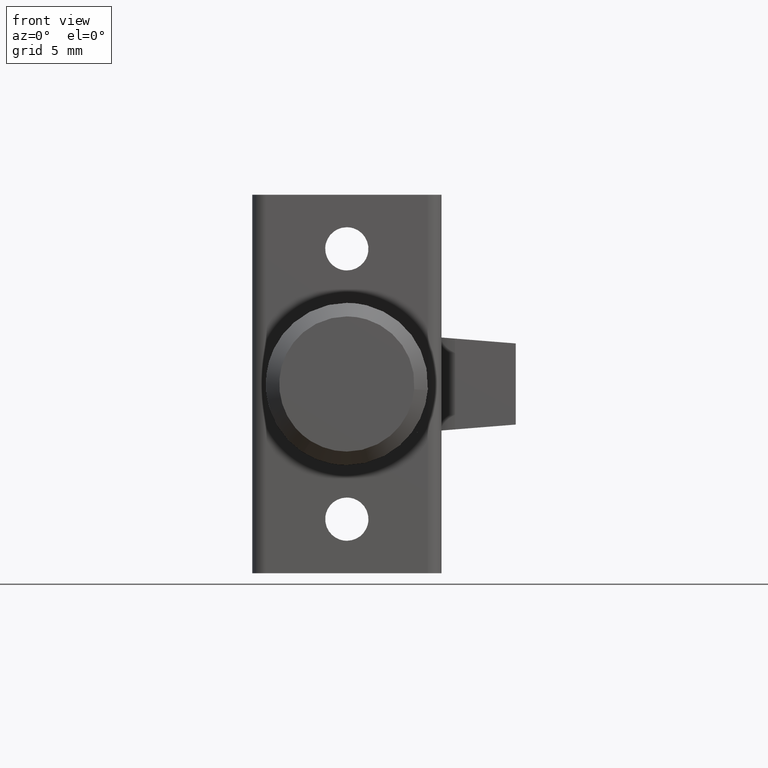
[diagram: clean part render]
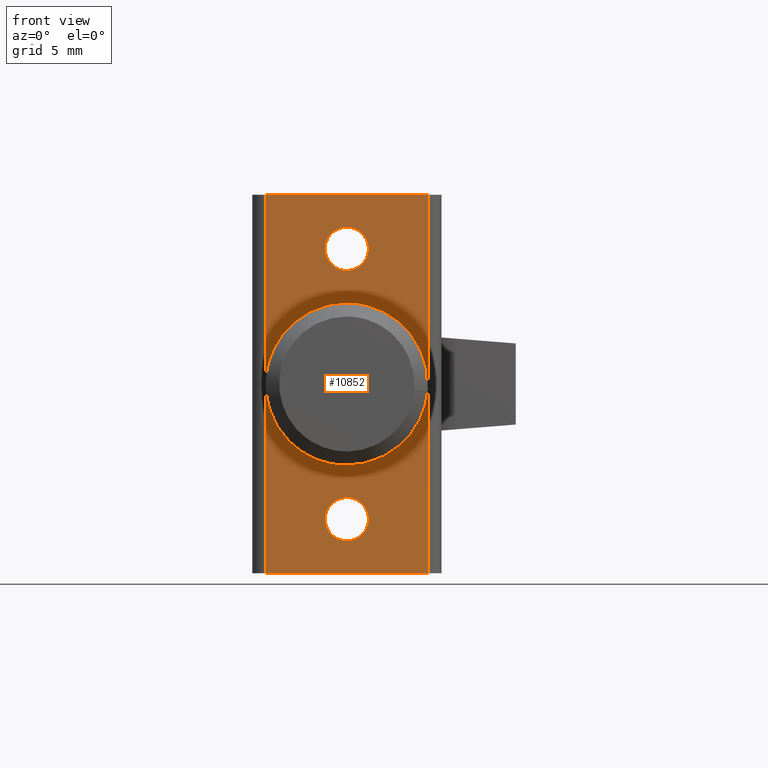
[diagram: same view with one face highlighted and labeled with its STEP entity id]
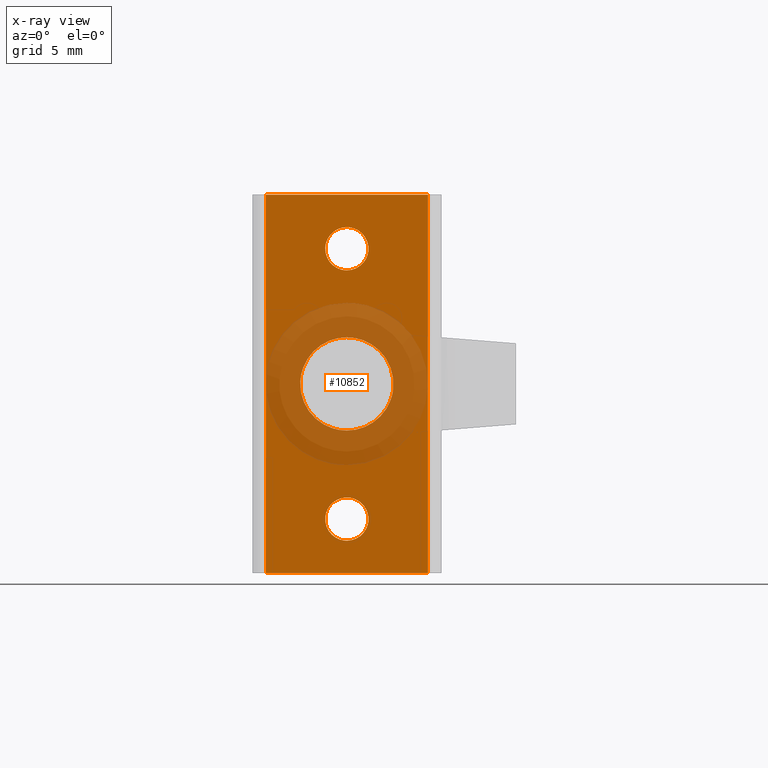
[diagram: x-ray of the same camera — body ghosted, the highlighted face saturated]
A machine part, front view. The second image highlights one B-rep face of the part: STEP entity #10852.
The next image is the same camera in x-ray: the body ghosted, the highlighted face saturated — about 27% of this face is hidden behind the body in this view.
In plain terms, the highlighted face is a freeform B-spline surface patch.
Its self-contained STEP definition (entity closure, byte-faithful):
#9592=CARTESIAN_POINT('',(-5.146464E-017,-3.425882865949449,-0.407218649367018));
#9593=VERTEX_POINT('',#9592);
#9594=CARTESIAN_POINT('',(0.0,0.0,3.449999460242545));
#9595=VERTEX_POINT('',#9594);
#9596=CARTESIAN_POINT('',(-5.146464E-017,-3.425882865949449,-0.407218649367018));
#9597=CARTESIAN_POINT('',(0.0,-3.450000000000000,-0.204323752600754));
#9598=CARTESIAN_POINT('',(0.0,-3.450000000000000,-0.000000539757455));
#9599=CARTESIAN_POINT('',(0.0,-3.450000000000000,3.449999460242546));
#9600=CARTESIAN_POINT('',(0.0,0.0,3.449999460242545));
#9608=(BOUNDED_CURVE()B_SPLINE_CURVE(2,(#9596,#9597,#9598,#9599,#9600),.UNSPECIFIED.,.F.,.U.)B_SPLINE_CURVE_WITH_KNOTS((3,2,3),(0.229562473511328,0.250000000000000,0.500000000000000),.UNSPECIFIED.)CURVE()GEOMETRIC_REPRESENTATION_ITEM()RATIONAL_B_SPLINE_CURVE((0.956026754179426,0.976055948328591,1.0,0.707106781186548,1.0))REPRESENTATION_ITEM(''));
#9609=EDGE_CURVE('',#9593,#9595,#9608,.T.);
#9611=CARTESIAN_POINT('',(-5.312417E-014,3.443565171959238,0.210615002085126));
#9612=VERTEX_POINT('',#9611);
#9613=CARTESIAN_POINT('',(0.0,0.0,3.449999460242545));
#9614=CARTESIAN_POINT('',(0.0,3.245437743314922,3.449999460242545));
#9615=CARTESIAN_POINT('',(-5.312417E-014,3.443565171959237,0.210615002085126));
#9623=(BOUNDED_CURVE()B_SPLINE_CURVE(2,(#9613,#9614,#9615),.UNSPECIFIED.,.F.,.U.)B_SPLINE_CURVE_WITH_KNOTS((3,3),(0.500000000000000,0.739333058425043),.UNSPECIFIED.)CURVE()GEOMETRIC_REPRESENTATION_ITEM()RATIONAL_B_SPLINE_CURVE((1.0,0.719603880597684,0.976072247811927))REPRESENTATION_ITEM(''));
#9624=EDGE_CURVE('',#9595,#9612,#9623,.T.);
#9691=CARTESIAN_POINT('',(0.0,0.0,-3.450000539757455));
#9692=VERTEX_POINT('',#9691);
#9693=CARTESIAN_POINT('',(0.0,0.0,-3.450000539757455));
#9694=CARTESIAN_POINT('',(0.0,-3.064202114453412,-3.450000539757455));
#9695=CARTESIAN_POINT('',(-5.146464E-017,-3.425882865949448,-0.407218649367018));
#9703=(BOUNDED_CURVE()B_SPLINE_CURVE(2,(#9693,#9694,#9695),.UNSPECIFIED.,.F.,.U.)B_SPLINE_CURVE_WITH_KNOTS((3,3),(0.0,0.229562473511328),.UNSPECIFIED.)CURVE()GEOMETRIC_REPRESENTATION_ITEM()RATIONAL_B_SPLINE_CURVE((1.0,0.731050832857957,0.956026754179426))REPRESENTATION_ITEM(''));
#9704=EDGE_CURVE('',#9692,#9593,#9703,.T.);
#9738=CARTESIAN_POINT('',(-5.312417E-014,3.443565171959237,0.210615002085126));
#9739=CARTESIAN_POINT('',(0.0,3.449999999999999,0.105405531155260));
#9740=CARTESIAN_POINT('',(0.0,3.450000000000000,-0.000000539757455));
#9741=CARTESIAN_POINT('',(0.0,3.450000000000000,-3.450000539757455));
#9742=CARTESIAN_POINT('',(0.0,0.0,-3.450000539757455));
#9750=(BOUNDED_CURVE()B_SPLINE_CURVE(2,(#9738,#9739,#9740,#9741,#9742),.UNSPECIFIED.,.F.,.U.)B_SPLINE_CURVE_WITH_KNOTS((3,2,3),(0.739333058425043,0.750000000000000,1.0),.UNSPECIFIED.)CURVE()GEOMETRIC_REPRESENTATION_ITEM()RATIONAL_B_SPLINE_CURVE((0.976072247811927,0.987502900588864,1.0,0.707106781186548,1.0))REPRESENTATION_ITEM(''));
#9751=EDGE_CURVE('',#9612,#9692,#9750,.T.);
#9778=CARTESIAN_POINT('',(-5.146464E-017,-1.588815242170919,9.811145502213789));
#9779=VERTEX_POINT('',#9778);
#9780=CARTESIAN_POINT('',(0.0,0.0,11.600000277756701));
#9781=VERTEX_POINT('',#9780);
#9782=CARTESIAN_POINT('',(-5.146464E-017,-1.588815242170919,9.811145502213789));
#9783=CARTESIAN_POINT('',(0.0,-1.600000000000001,9.905241686220572));
#9784=CARTESIAN_POINT('',(0.0,-1.600000000000000,10.000000277756699));
#9785=CARTESIAN_POINT('',(0.0,-1.600000000000000,11.600000277756697));
#9786=CARTESIAN_POINT('',(0.0,0.0,11.600000277756701));
#9794=(BOUNDED_CURVE()B_SPLINE_CURVE(2,(#9782,#9783,#9784,#9785,#9786),.UNSPECIFIED.,.F.,.U.)B_SPLINE_CURVE_WITH_KNOTS((3,2,3),(0.229562473496051,0.250000000000000,0.500000000000000),.UNSPECIFIED.)CURVE()GEOMETRIC_REPRESENTATION_ITEM()RATIONAL_B_SPLINE_CURVE((0.956026754149483,0.976055948310693,1.0,0.707106781186548,1.0))REPRESENTATION_ITEM(''));
#9795=EDGE_CURVE('',#9779,#9781,#9794,.T.);
#9797=CARTESIAN_POINT('',(-5.204170E-017,1.597015677468722,10.097677941114901));
#9798=VERTEX_POINT('',#9797);
#9799=CARTESIAN_POINT('',(0.0,0.0,11.600000277756701));
#9800=CARTESIAN_POINT('',(0.0,1.505129706855670,11.600000277756697));
#9801=CARTESIAN_POINT('',(-5.204170E-017,1.597015677468723,10.097677941114902));
#9809=(BOUNDED_CURVE()B_SPLINE_CURVE(2,(#9799,#9800,#9801),.UNSPECIFIED.,.F.,.U.)B_SPLINE_CURVE_WITH_KNOTS((3,3),(0.500000000000000,0.739332962219834),.UNSPECIFIED.)CURVE()GEOMETRIC_REPRESENTATION_ITEM()RATIONAL_B_SPLINE_CURVE((1.0,0.719603993309098,0.976072041625763))REPRESENTATION_ITEM(''));
#9810=EDGE_CURVE('',#9781,#9798,#9809,.T.);
#9877=CARTESIAN_POINT('',(0.0,0.0,8.400000277756700));
#9878=VERTEX_POINT('',#9877);
#9879=CARTESIAN_POINT('',(0.0,0.0,8.400000277756700));
#9880=CARTESIAN_POINT('',(0.0,-1.421079241356279,8.400000277756702));
#9881=CARTESIAN_POINT('',(-5.146464E-017,-1.588815242170919,9.811145502213789));
#9889=(BOUNDED_CURVE()B_SPLINE_CURVE(2,(#9879,#9880,#9881),.UNSPECIFIED.,.F.,.U.)B_SPLINE_CURVE_WITH_KNOTS((3,3),(0.0,0.229562473496051),.UNSPECIFIED.)CURVE()GEOMETRIC_REPRESENTATION_ITEM()RATIONAL_B_SPLINE_CURVE((1.0,0.731050832875855,0.956026754149483))REPRESENTATION_ITEM(''));
#9890=EDGE_CURVE('',#9878,#9779,#9889,.T.);
#9924=CARTESIAN_POINT('',(-5.204170E-017,1.597015677468722,10.097677941114902));
#9925=CARTESIAN_POINT('',(0.0,1.600000000000001,10.048884699137160));
#9926=CARTESIAN_POINT('',(0.0,1.600000000000000,10.000000277756699));
#9927=CARTESIAN_POINT('',(0.0,1.600000000000000,8.400000277756702));
#9928=CARTESIAN_POINT('',(0.0,0.0,8.400000277756700));
#9936=(BOUNDED_CURVE()B_SPLINE_CURVE(2,(#9924,#9925,#9926,#9927,#9928),.UNSPECIFIED.,.F.,.U.)B_SPLINE_CURVE_WITH_KNOTS((3,2,3),(0.739332962219834,0.750000000000000,1.0),.UNSPECIFIED.)CURVE()GEOMETRIC_REPRESENTATION_ITEM()RATIONAL_B_SPLINE_CURVE((0.976072041625764,0.987502787877450,1.0,0.707106781186548,1.0))REPRESENTATION_ITEM(''));
#9937=EDGE_CURVE('',#9798,#9878,#9936,.T.);
#9964=CARTESIAN_POINT('',(-5.146464E-017,1.588815242170919,-9.811144946700509));
#9965=VERTEX_POINT('',#9964);
#9966=CARTESIAN_POINT('',(0.0,0.0,-11.599999722243419));
#9967=VERTEX_POINT('',#9966);
#9968=CARTESIAN_POINT('',(-5.146464E-017,1.588815242170919,-9.811144946700511));
#9969=CARTESIAN_POINT('',(0.0,1.600000000000001,-9.905241130707292));
#9970=CARTESIAN_POINT('',(0.0,1.600000000000000,-9.999999722243420));
#9971=CARTESIAN_POINT('',(0.0,1.600000000000000,-11.599999722243423));
#9972=CARTESIAN_POINT('',(0.0,0.0,-11.599999722243419));
#9980=(BOUNDED_CURVE()B_SPLINE_CURVE(2,(#9968,#9969,#9970,#9971,#9972),.UNSPECIFIED.,.F.,.U.)B_SPLINE_CURVE_WITH_KNOTS((3,2,3),(0.729562473496051,0.750000000000000,1.0),.UNSPECIFIED.)CURVE()GEOMETRIC_REPRESENTATION_ITEM()RATIONAL_B_SPLINE_CURVE((0.956026754149483,0.976055948310693,1.0,0.707106781186548,1.0))REPRESENTATION_ITEM(''));
#9981=EDGE_CURVE('',#9965,#9967,#9980,.T.);
#9983=CARTESIAN_POINT('',(-5.204170E-017,-1.597015677468722,-10.097677385601621));
#9984=VERTEX_POINT('',#9983);
#9985=CARTESIAN_POINT('',(0.0,0.0,-11.599999722243419));
#9986=CARTESIAN_POINT('',(0.0,-1.505129706855671,-11.599999722243421));
#9987=CARTESIAN_POINT('',(-5.204170E-017,-1.597015677468722,-10.097677385601624));
#9995=(BOUNDED_CURVE()B_SPLINE_CURVE(2,(#9985,#9986,#9987),.UNSPECIFIED.,.F.,.U.)B_SPLINE_CURVE_WITH_KNOTS((3,3),(0.0,0.239332962219834),.UNSPECIFIED.)CURVE()GEOMETRIC_REPRESENTATION_ITEM()RATIONAL_B_SPLINE_CURVE((1.0,0.719603993309098,0.976072041625763))REPRESENTATION_ITEM(''));
#9996=EDGE_CURVE('',#9967,#9984,#9995,.T.);
#10063=CARTESIAN_POINT('',(0.0,0.0,-8.399999722243420));
#10064=VERTEX_POINT('',#10063);
#10065=CARTESIAN_POINT('',(0.0,0.0,-8.399999722243420));
#10066=CARTESIAN_POINT('',(0.0,1.421079241356287,-8.399999722243418));
#10067=CARTESIAN_POINT('',(-5.146464E-017,1.588815242170919,-9.811144946700509));
#10075=(BOUNDED_CURVE()B_SPLINE_CURVE(2,(#10065,#10066,#10067),.UNSPECIFIED.,.F.,.U.)B_SPLINE_CURVE_WITH_KNOTS((3,3),(0.500000000000000,0.729562473496052),.UNSPECIFIED.)CURVE()GEOMETRIC_REPRESENTATION_ITEM()RATIONAL_B_SPLINE_CURVE((1.0,0.731050832875854,0.956026754149484))REPRESENTATION_ITEM(''));
#10076=EDGE_CURVE('',#10064,#9965,#10075,.T.);
#10110=CARTESIAN_POINT('',(-5.204170E-017,-1.597015677468722,-10.097677385601624));
#10111=CARTESIAN_POINT('',(0.0,-1.600000000000000,-10.048884143623884));
#10112=CARTESIAN_POINT('',(0.0,-1.600000000000000,-9.999999722243420));
#10113=CARTESIAN_POINT('',(0.0,-1.600000000000000,-8.399999722243420));
#10114=CARTESIAN_POINT('',(0.0,0.0,-8.399999722243420));
#10122=(BOUNDED_CURVE()B_SPLINE_CURVE(2,(#10110,#10111,#10112,#10113,#10114),.UNSPECIFIED.,.F.,.U.)B_SPLINE_CURVE_WITH_KNOTS((3,2,3),(0.239332962219834,0.250000000000000,0.500000000000000),.UNSPECIFIED.)CURVE()GEOMETRIC_REPRESENTATION_ITEM()RATIONAL_B_SPLINE_CURVE((0.976072041625764,0.987502787877450,1.0,0.707106781186548,1.0))REPRESENTATION_ITEM(''));
#10123=EDGE_CURVE('',#9984,#10064,#10122,.T.);
#10650=CARTESIAN_POINT('',(-7.347638E-016,6.0,14.000000277756600));
#10651=VERTEX_POINT('',#10650);
#10665=CARTESIAN_POINT('',(4.440892E-016,-6.0,14.000000277756600));
#10666=VERTEX_POINT('',#10665);
#10667=CARTESIAN_POINT('',(4.440892E-016,-6.0,14.000000277756600));
#10668=CARTESIAN_POINT('',(-7.347638E-016,6.0,14.000000277756600));
#10669=QUASI_UNIFORM_CURVE('',1,(#10667,#10668),.UNSPECIFIED.,.F.,.U.);
#10670=EDGE_CURVE('',#10666,#10651,#10669,.T.);
#10790=CARTESIAN_POINT('',(-7.347638E-016,6.0,-13.999999722243301));
#10791=VERTEX_POINT('',#10790);
#10805=CARTESIAN_POINT('',(-7.347638E-016,6.0,-13.999999722243301));
#10806=CARTESIAN_POINT('',(-7.347638E-016,6.0,14.000000277756600));
#10807=QUASI_UNIFORM_CURVE('',1,(#10805,#10806),.UNSPECIFIED.,.F.,.U.);
#10808=EDGE_CURVE('',#10791,#10651,#10807,.T.);
#10813=CARTESIAN_POINT('',(7.347638E-016,-6.599399976741672,-15.398599930817831));
#10814=CARTESIAN_POINT('',(7.347638E-016,6.599400298606753,-15.398599930817831));
#10815=CARTESIAN_POINT('',(7.347638E-016,-6.599399976741672,15.398600987010150));
#10816=CARTESIAN_POINT('',(7.347638E-016,6.599400298606753,15.398600987010150));
#10817=B_SPLINE_SURFACE_WITH_KNOTS('',1,1,((#10813,#10815),(#10814,#10816)),.UNSPECIFIED.,.F.,.F.,.U.,(2,2),(2,2),(0.0,13.198800275348431),(0.0,30.797200917827979),.UNSPECIFIED.);
#10818=ORIENTED_EDGE('',*,*,#10670,.T.);
#10819=ORIENTED_EDGE('',*,*,#10808,.F.);
#10820=CARTESIAN_POINT('',(4.440892E-016,-6.0,-13.999999722243301));
#10821=VERTEX_POINT('',#10820);
#10822=CARTESIAN_POINT('',(4.440892E-016,-6.0,-13.999999722243301));
#10823=CARTESIAN_POINT('',(-7.347638E-016,6.0,-13.999999722243301));
#10824=QUASI_UNIFORM_CURVE('',1,(#10822,#10823),.UNSPECIFIED.,.F.,.U.);
#10825=EDGE_CURVE('',#10821,#10791,#10824,.T.);
#10826=ORIENTED_EDGE('',*,*,#10825,.F.);
#10827=CARTESIAN_POINT('',(4.440892E-016,-6.0,-13.999999722243301));
#10828=CARTESIAN_POINT('',(4.440892E-016,-6.0,14.000000277756600));
#10829=QUASI_UNIFORM_CURVE('',1,(#10827,#10828),.UNSPECIFIED.,.F.,.U.);
#10830=EDGE_CURVE('',#10821,#10666,#10829,.T.);
#10831=ORIENTED_EDGE('',*,*,#10830,.T.);
#10832=EDGE_LOOP('',(#10818,#10819,#10826,#10831));
#10833=FACE_OUTER_BOUND('',#10832,.T.);
#10834=ORIENTED_EDGE('',*,*,#9996,.F.);
#10835=ORIENTED_EDGE('',*,*,#9981,.F.);
#10836=ORIENTED_EDGE('',*,*,#10076,.F.);
#10837=ORIENTED_EDGE('',*,*,#10123,.F.);
#10838=EDGE_LOOP('',(#10834,#10835,#10836,#10837));
#10839=FACE_BOUND('',#10838,.T.);
#10840=ORIENTED_EDGE('',*,*,#9810,.F.);
#10841=ORIENTED_EDGE('',*,*,#9795,.F.);
#10842=ORIENTED_EDGE('',*,*,#9890,.F.);
#10843=ORIENTED_EDGE('',*,*,#9937,.F.);
#10844=EDGE_LOOP('',(#10840,#10841,#10842,#10843));
#10845=FACE_BOUND('',#10844,.T.);
#10846=ORIENTED_EDGE('',*,*,#9624,.F.);
#10847=ORIENTED_EDGE('',*,*,#9609,.F.);
#10848=ORIENTED_EDGE('',*,*,#9704,.F.);
#10849=ORIENTED_EDGE('',*,*,#9751,.F.);
#10850=EDGE_LOOP('',(#10846,#10847,#10848,#10849));
#10851=FACE_BOUND('',#10850,.T.);
#10852=ADVANCED_FACE('',(#10833,#10839,#10845,#10851),#10817,.F.);